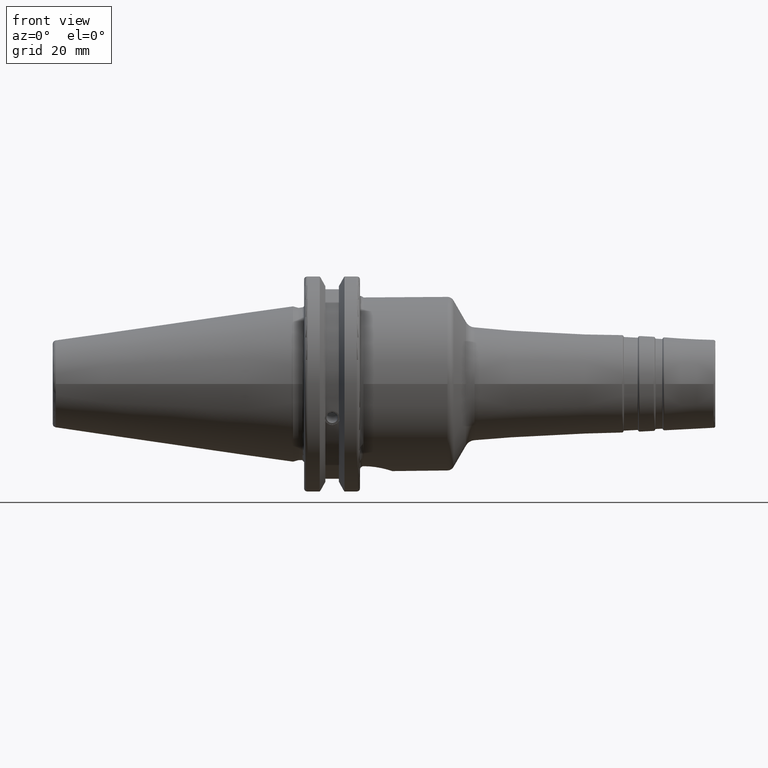
[diagram: clean part render]
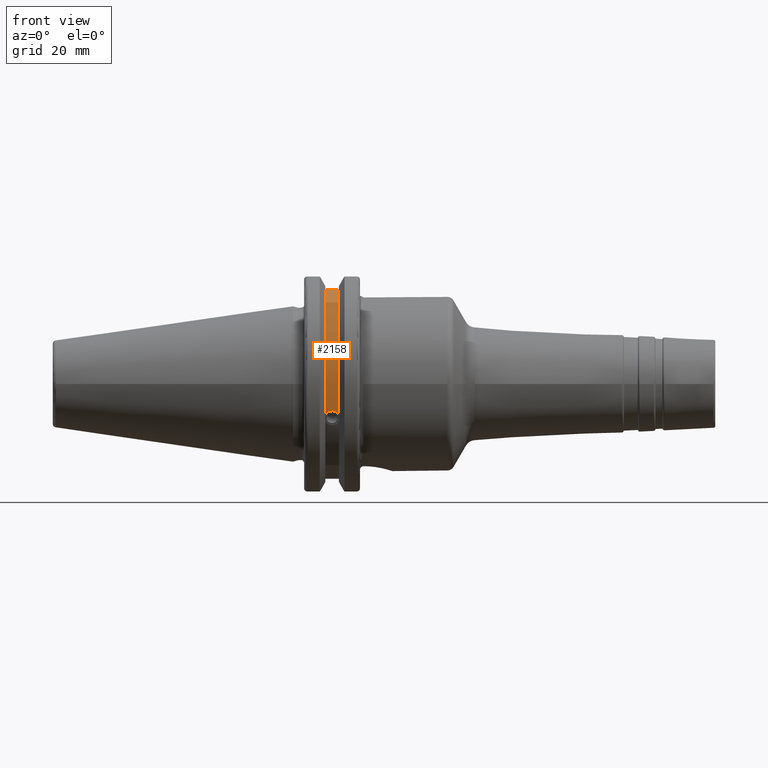
[diagram: same view with one face highlighted and labeled with its STEP entity id]
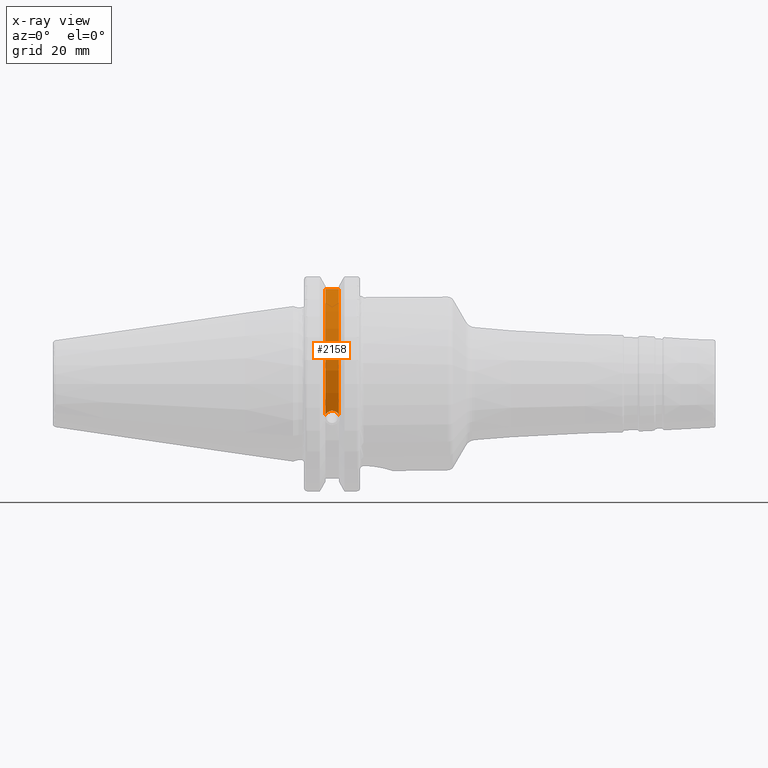
[diagram: x-ray of the same camera — body ghosted, the highlighted face saturated]
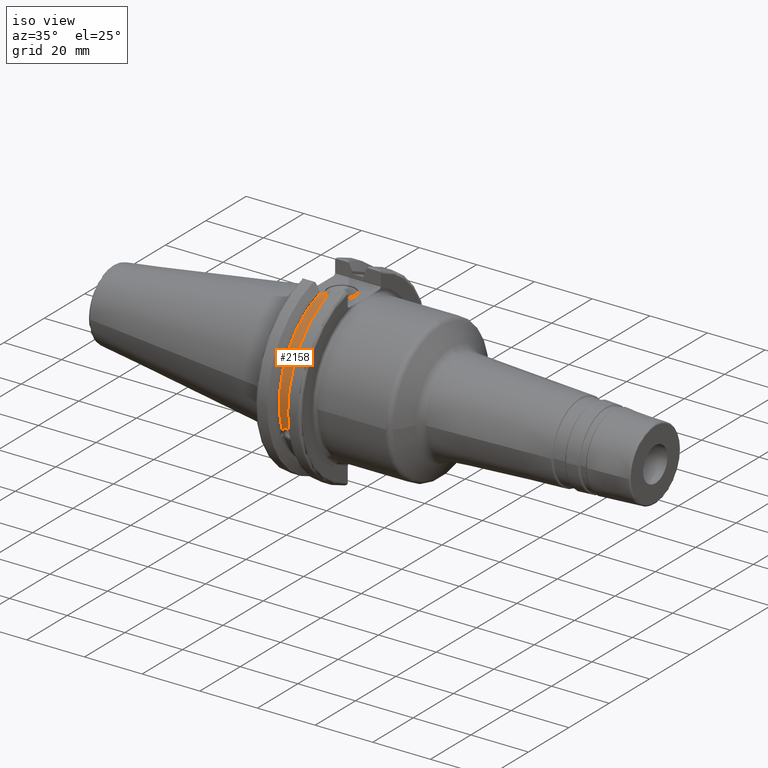
[diagram: same view with one face highlighted and labeled with its STEP entity id]
A machine part, front view. The second image highlights one B-rep face of the part: STEP entity #2158.
The next image is the same camera in x-ray: the body ghosted, the highlighted face saturated — about 0% of this face is hidden behind the body in this view.
A second angle (iso view) of the same face is appended — the face is thin or edge-on in the first view.
In plain terms, the highlighted cylindrical surface (partial cylindrical patch) has radius 28.15 mm, axis along (1, 0, 0).
Its self-contained STEP definition (entity closure, byte-faithful):
#127=B_SPLINE_CURVE_WITH_KNOTS('',3,(#3603,#3604,#3605,#3606,#3607,#3608,
#3609,#3610,#3611,#3612,#3613,#3614,#3615,#3616),.UNSPECIFIED.,.F.,.F.,
(4,2,2,2,2,2,4),(0.401639126382404,0.474814416953736,0.553950208498303,
0.63308600004287,0.712221791587437,0.791357583132004,0.864532873703336),
 .UNSPECIFIED.);
#180=CYLINDRICAL_SURFACE('',#2467,28.15);
#277=FACE_OUTER_BOUND('',#396,.T.);
#396=EDGE_LOOP('',(#1979,#1980,#1981,#1982));
#481=LINE('',#4035,#580);
#580=VECTOR('',#3026,10.);
#772=CIRCLE('',#2468,28.15);
#773=CIRCLE('',#2469,28.15);
#893=VERTEX_POINT('',#3600);
#894=VERTEX_POINT('',#3602);
#987=VERTEX_POINT('',#4032);
#988=VERTEX_POINT('',#4034);
#1170=EDGE_CURVE('',#894,#893,#127,.T.);
#1295=EDGE_CURVE('',#988,#987,#481,.T.);
#1350=EDGE_CURVE('',#988,#893,#772,.T.);
#1351=EDGE_CURVE('',#987,#894,#773,.T.);
#1979=ORIENTED_EDGE('',*,*,#1170,.T.);
#1980=ORIENTED_EDGE('',*,*,#1350,.F.);
#1981=ORIENTED_EDGE('',*,*,#1295,.T.);
#1982=ORIENTED_EDGE('',*,*,#1351,.T.);
#2158=ADVANCED_FACE('',(#277),#180,.T.);
#2467=AXIS2_PLACEMENT_3D('',#4191,#3140,#3141);
#2468=AXIS2_PLACEMENT_3D('',#4192,#3142,#3143);
#2469=AXIS2_PLACEMENT_3D('',#4193,#3144,#3145);
#3026=DIRECTION('',(-1.,0.,0.));
#3140=DIRECTION('center_axis',(1.,0.,0.));
#3141=DIRECTION('ref_axis',(0.,-0.887654187951484,0.46051063246378));
#3142=DIRECTION('center_axis',(1.,0.,0.));
#3143=DIRECTION('ref_axis',(0.,0.,-1.));
#3144=DIRECTION('center_axis',(1.,0.,0.));
#3145=DIRECTION('ref_axis',(0.,0.,-1.));
#3600=CARTESIAN_POINT('',(13.0491,-26.734714844398,-8.81348524641211));
#3602=CARTESIAN_POINT('',(9.2191,-26.734714844398,-8.81348524641212));
#3603=CARTESIAN_POINT('Ctrl Pts',(9.2191,-26.734714844398,-8.81348524641212));
#3604=CARTESIAN_POINT('Ctrl Pts',(9.32533057097183,-26.8086519721597,-8.58920529678291));
#3605=CARTESIAN_POINT('Ctrl Pts',(9.47682013770509,-26.8729987454904,-8.38416529997369));
#3606=CARTESIAN_POINT('Ctrl Pts',(9.83557062657411,-26.9778908791383,-8.04056861831091));
#3607=CARTESIAN_POINT('Ctrl Pts',(10.0716450112988,-27.0233016799732,-7.88512567185902));
#3608=CARTESIAN_POINT('Ctrl Pts',(10.5890125426388,-27.0826966800569,-7.6786444840004));
#3609=CARTESIAN_POINT('Ctrl Pts',(10.8703140281848,-27.0968804077294,-7.62768458768512));
#3610=CARTESIAN_POINT('Ctrl Pts',(11.3978859718152,-27.0968804077294,-7.62768458768512));
#3611=CARTESIAN_POINT('Ctrl Pts',(11.6791874573612,-27.0826966800569,-7.6786444840004));
#3612=CARTESIAN_POINT('Ctrl Pts',(12.1965549887012,-27.0233016799732,-7.88512567185902));
#3613=CARTESIAN_POINT('Ctrl Pts',(12.4326293734259,-26.9778908791383,-8.04056861831091));
#3614=CARTESIAN_POINT('Ctrl Pts',(12.7913798622949,-26.8729987454904,-8.38416529997369));
#3615=CARTESIAN_POINT('Ctrl Pts',(12.9428694290282,-26.8086519721597,-8.58920529678291));
#3616=CARTESIAN_POINT('Ctrl Pts',(13.0491,-26.734714844398,-8.81348524641211));
#4032=CARTESIAN_POINT('',(9.2191,-8.19,26.932255754021));
#4034=CARTESIAN_POINT('',(13.0491,-8.19,26.932255754021));
#4035=CARTESIAN_POINT('',(11.1341,-8.19,26.932255754021));
#4191=CARTESIAN_POINT('Origin',(11.1341,0.,0.));
#4192=CARTESIAN_POINT('Origin',(13.0491,0.,0.));
#4193=CARTESIAN_POINT('Origin',(9.2191,0.,0.));